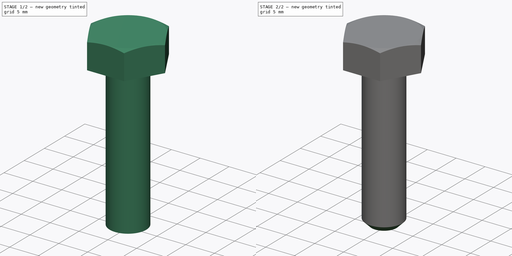
[diagram: build sequence overview — one tinted view per stage of 2, left to right]
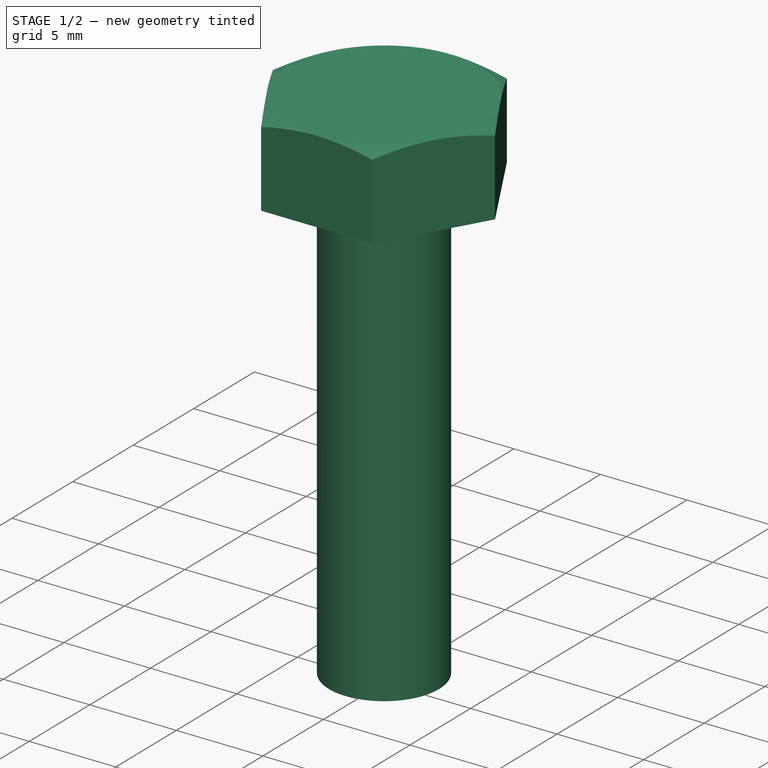
[diagram: stage 1 of 2 — iso view after this stage's code; geometry added in this stage tinted green]
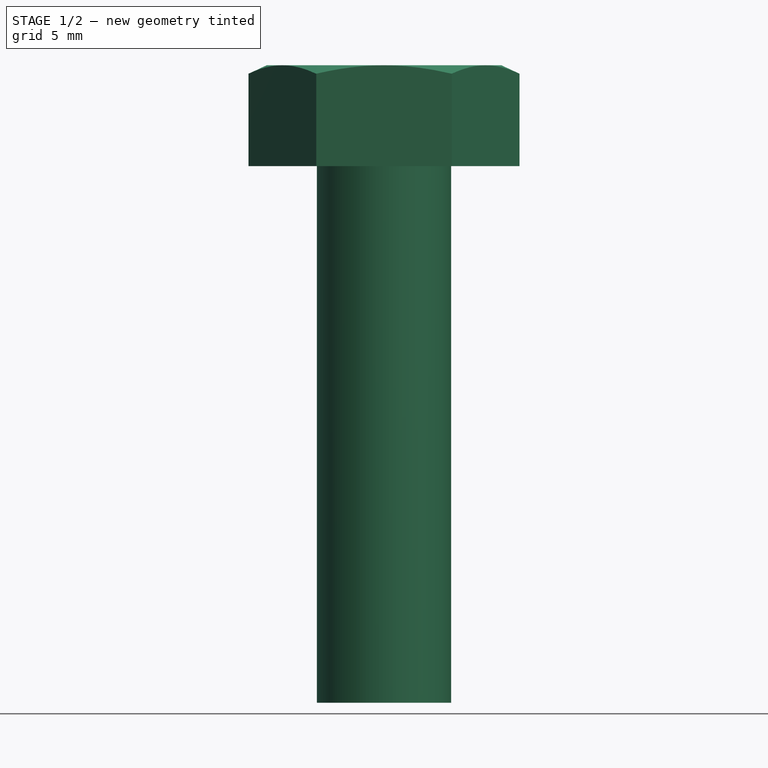
[diagram: stage 1 of 2 — front view after this stage's code; geometry added in this stage tinted green]
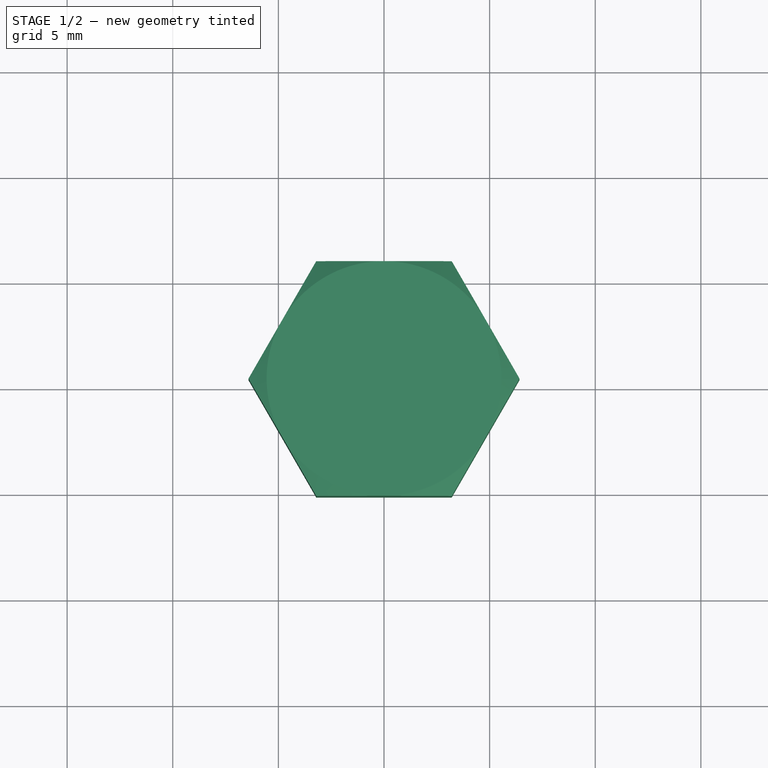
[diagram: stage 1 of 2 — top view after this stage's code; geometry added in this stage tinted green]
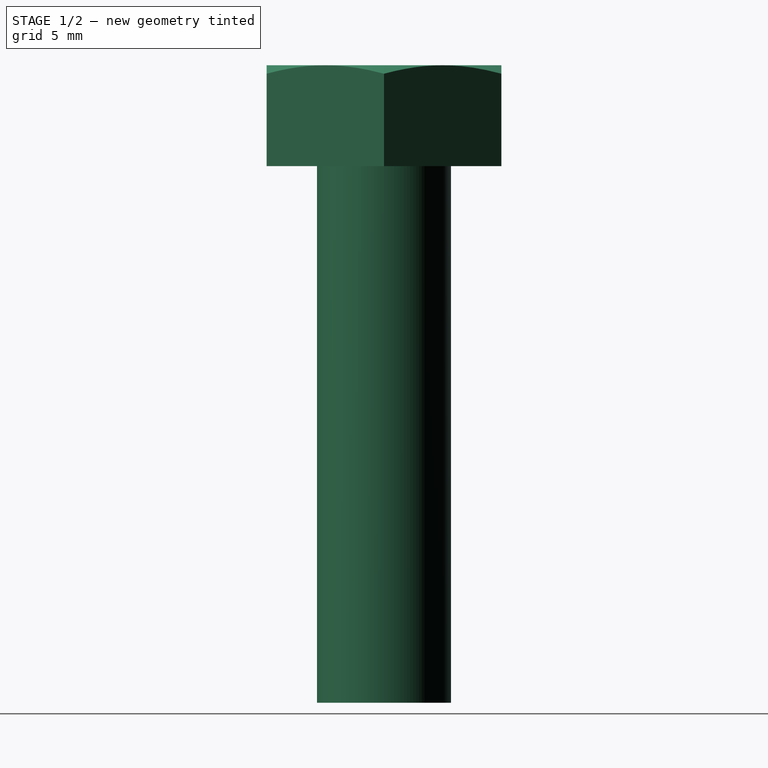
[diagram: stage 1 of 2 — right view after this stage's code; geometry added in this stage tinted green]
FCSTD DOCUMENT
Label: ANSI-ASME-B18.2.1_Hex_Head_Cap_Screw_1_4-20x1
License: CC-BY 3.0
LicenseURL: http://creativecommons.org/licenses/by/3.0/
objects: Sketcher::SketchObject×2, PartDesign::Revolution×1, PartDesign::Pocket×1, PartDesign::Chamfer×1
note: 7 computed .brp shape members not serialized (recipe doc carries the construction recipe); baked Part::Feature solids carry a one-line shape summary decoded from their .brp

FEATURE [Sketcher::SketchObject] Sketch
  Placement = pos=(0,0,0) rot=(1,0,0;1.5708rad)
  sketch-geometry (7):
    g0: LineSegment StartX=0 StartY=4.7752 StartZ=0 EndX=5.55625 EndY=4.7752 EndZ=0
    g1: LineSegment StartX=5.55625 StartY=4.7752 StartZ=0 EndX=6.4158 EndY=4.37438 EndZ=0
    g2: LineSegment StartX=6.4158 StartY=4.37438 StartZ=0 EndX=6.4158 EndY=0 EndZ=0
    g3: LineSegment StartX=6.4158 StartY=0 StartZ=0 EndX=3.175 EndY=0 EndZ=0
    g4: LineSegment StartX=3.175 StartY=0 StartZ=0 EndX=3.175 EndY=-25.4 EndZ=0
    g5: LineSegment StartX=3.175 StartY=-25.4 StartZ=0 EndX=0 EndY=-25.4 EndZ=0
    g6: LineSegment StartX=0 StartY=4.7752 StartZ=0 EndX=0 EndY=-25.4 EndZ=0
  constraints (21):
    c: PointOnObject(g0,g-2)
    c: Horizontal(g0)
    c: Coincident(g0,g1)
    c: Coincident(g1,g2)
    c: Vertical(g2)
    c: Horizontal(g3)
    c: DistanceX(g0) = 5.55625
    c: Angle(g0,g1) = 2.70526
    c: Vertical(g4)
    c: Coincident(g4,g5)
    c: PointOnObject(g5,g-2)
    c: Horizontal(g5)
    c: Coincident(g3,g4)
    c: DistanceX(g1,g0) = -6.4158
    c: Coincident(g6,g0)
    c: Coincident(g6,g5)
    c: DistanceX(g5) = -3.175
    c: PointOnObject(g3,g-1)
    c: Coincident(g3,g2)
    c: DistanceY(g2,g0) = 4.7752
    c: DistanceY(g4,g2) = 25.4
FEATURE [PartDesign::Revolution] Revolution
  Angle = 360
  Axis = (0,0,1)
  Base = (0,0,0)
  Placement = pos=(0,0,0) rot=(1,0,0;1.5708rad)
  ReferenceAxis = -> Sketch [V_Axis]
  Sketch = -> Sketch
FEATURE [Sketcher::SketchObject] Sketch001  label="Hexagon"
  Placement = pos=(0,0,4.7752) rot=(0,0,1;3.14159rad)
  Support = -> Revolution [Face1]
  sketch-geometry (9):
    g0: LineSegment StartX=-3.2079 StartY=5.55625 StartZ=0 EndX=3.2079 EndY=5.55625 EndZ=0
    g1: LineSegment StartX=3.2079 StartY=5.55625 StartZ=0 EndX=6.4158 EndY=0 EndZ=0
    g2: LineSegment StartX=6.4158 StartY=0 StartZ=0 EndX=3.2079 EndY=-5.55625 EndZ=0
    g3: LineSegment StartX=3.2079 StartY=-5.55625 StartZ=0 EndX=-3.2079 EndY=-5.55625 EndZ=0
    g4: LineSegment StartX=-3.2079 StartY=-5.55625 StartZ=0 EndX=-6.4158 EndY=0 EndZ=0
    g5: LineSegment StartX=-6.4158 StartY=0 StartZ=0 EndX=-3.2079 EndY=5.55625 EndZ=0
    g6: Circle [constr] CenterX=0 CenterY=0 CenterZ=0 NormalX=0 NormalY=0 NormalZ=1 Radius=6.4158
    g7: Circle CenterX=0 CenterY=0 CenterZ=0 NormalX=0 NormalY=0 NormalZ=1 Radius=7.4158
    g8: LineSegment [constr] StartX=0 StartY=6.4158 StartZ=0 EndX=0 EndY=7.4158 EndZ=0
  constraints (26):
    c: Horizontal(g0)
    c: Coincident(g0,g1)
    c: Coincident(g1,g2)
    c: Coincident(g2,g3)
    c: Horizontal(g3)
    c: Coincident(g3,g4)
    c: Coincident(g4,g5)
    c: Coincident(g5,g0)
    c: Equal(g5,g0)
    c: Equal(g0,g4)
    c: Equal(g4,g3)
    c: Equal(g3,g2)
    c: Equal(g2,g1)
    c: PointOnObject(g0,g6)
    c: PointOnObject(g2,g6)
    c: PointOnObject(g1,g6)
    c: PointOnObject(g4,g6)
    c: PointOnObject(g0,g6)
    c: DistanceY(g3,g0) = 11.1125
    c: Coincident(g6,g-1)
    c: Coincident(g7,g-1)
    c: PointOnObject(g8,g6)
    c: PointOnObject(g8,g7)
    c: Vertical(g8)
    c: PointOnObject(g8,g-2)
    c: DistanceY(g8) = 1
FEATURE [PartDesign::Pocket] Pocket
  Length = 5
  Placement = pos=(0,0,0) rot=(1,0,0;1.5708rad)
  Sketch = -> Sketch001
  Type = 1
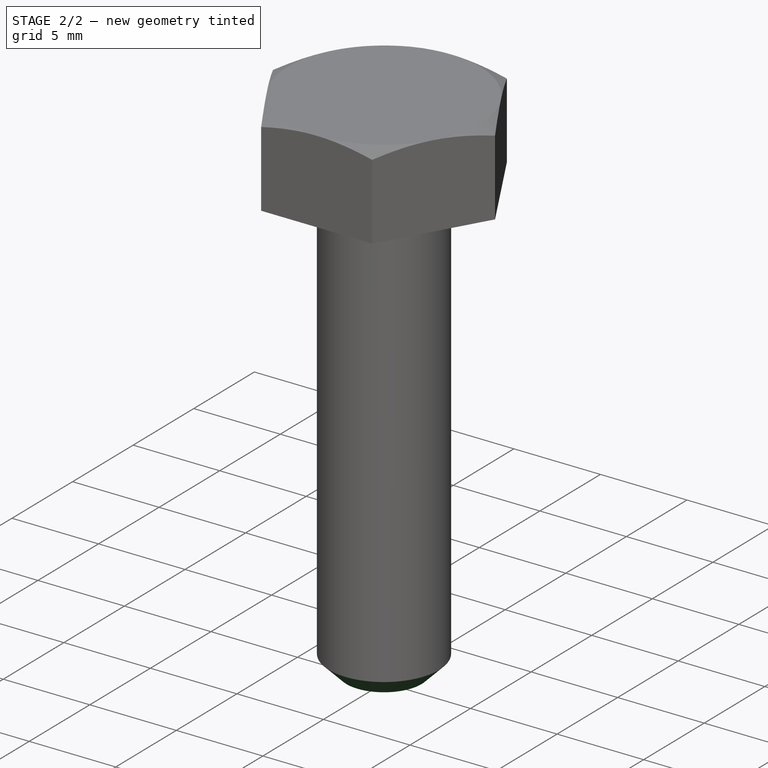
[diagram: stage 2 of 2 — iso view after this stage's code; geometry added in this stage tinted green]
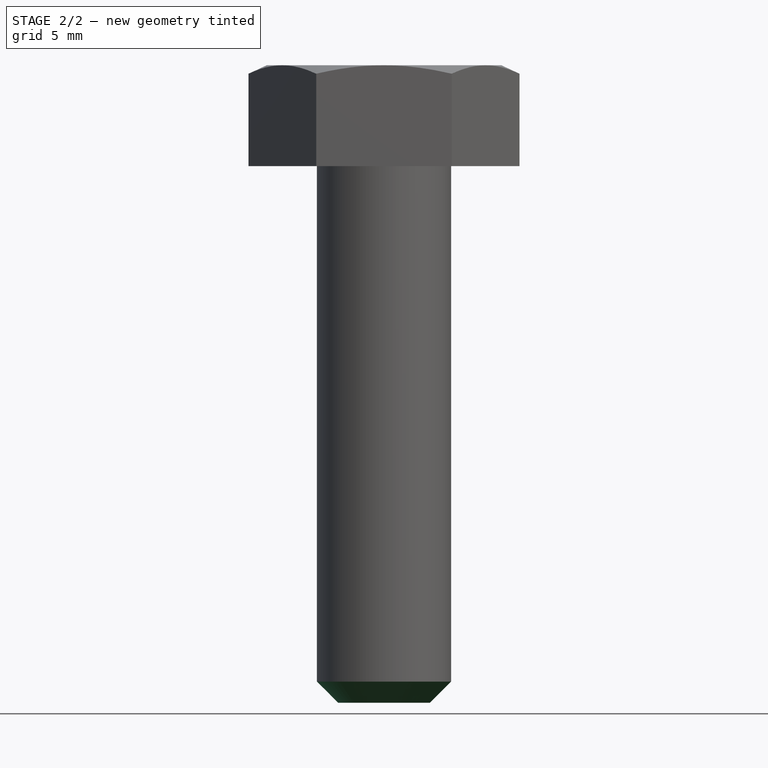
[diagram: stage 2 of 2 — front view after this stage's code; geometry added in this stage tinted green]
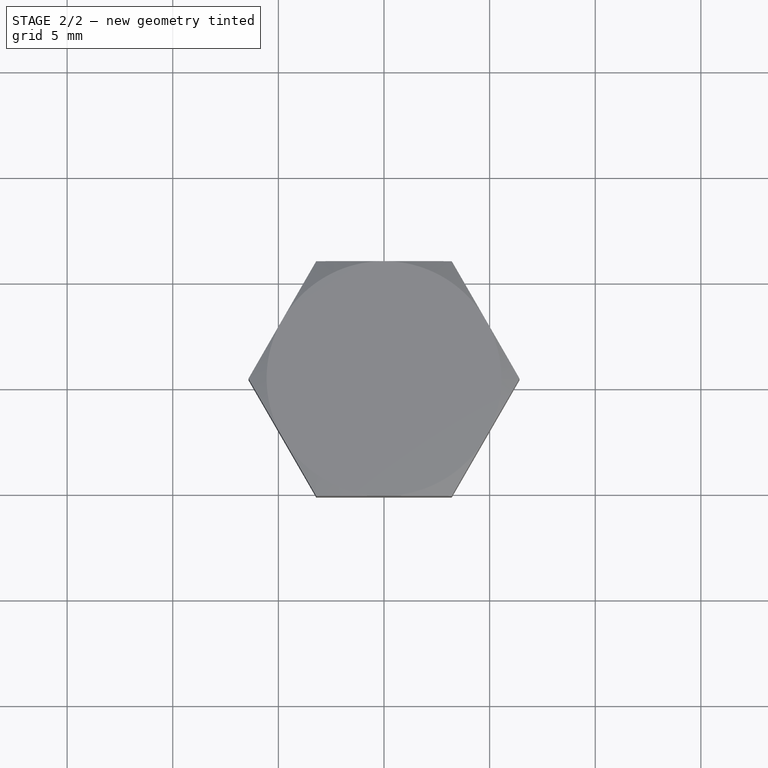
[diagram: stage 2 of 2 — top view after this stage's code; geometry added in this stage tinted green]
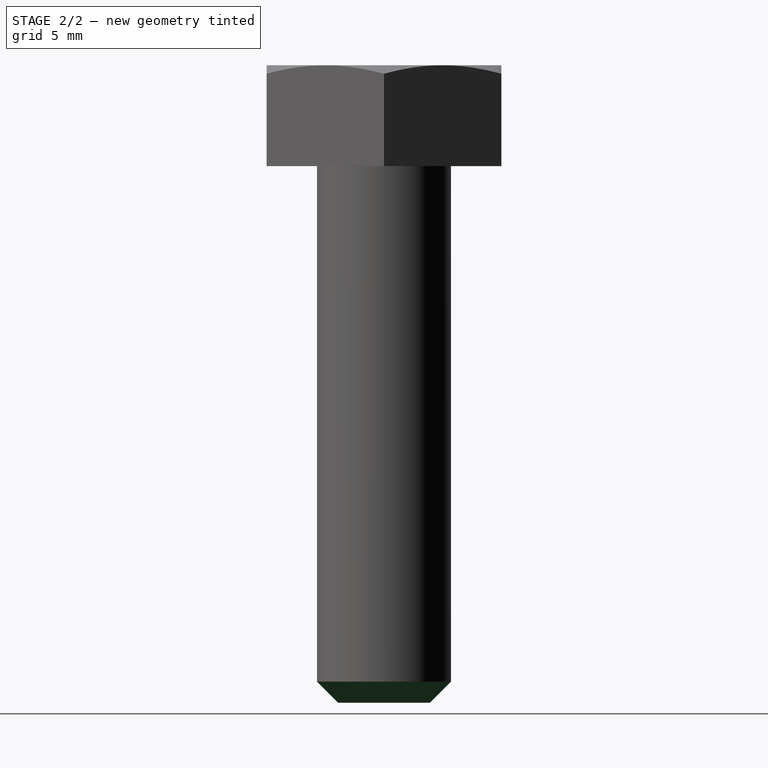
[diagram: stage 2 of 2 — right view after this stage's code; geometry added in this stage tinted green]
FEATURE [PartDesign::Chamfer] Chamfer
  Base = -> Pocket [Edge2]
  Placement = pos=(0,0,0) rot=(1,0,0;1.5708rad)
  Size = 1
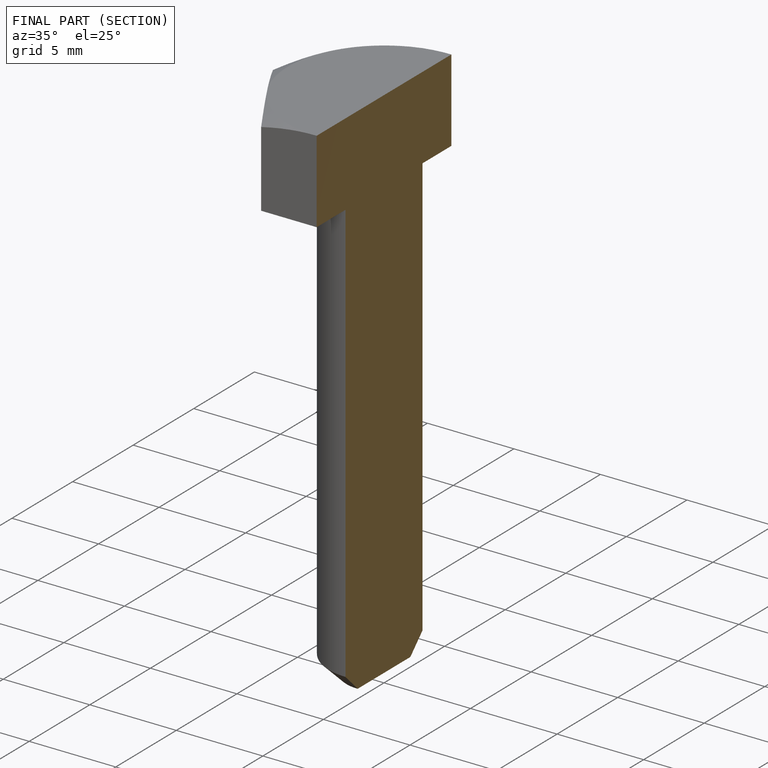
[diagram: finished part — half-section view (interior)]
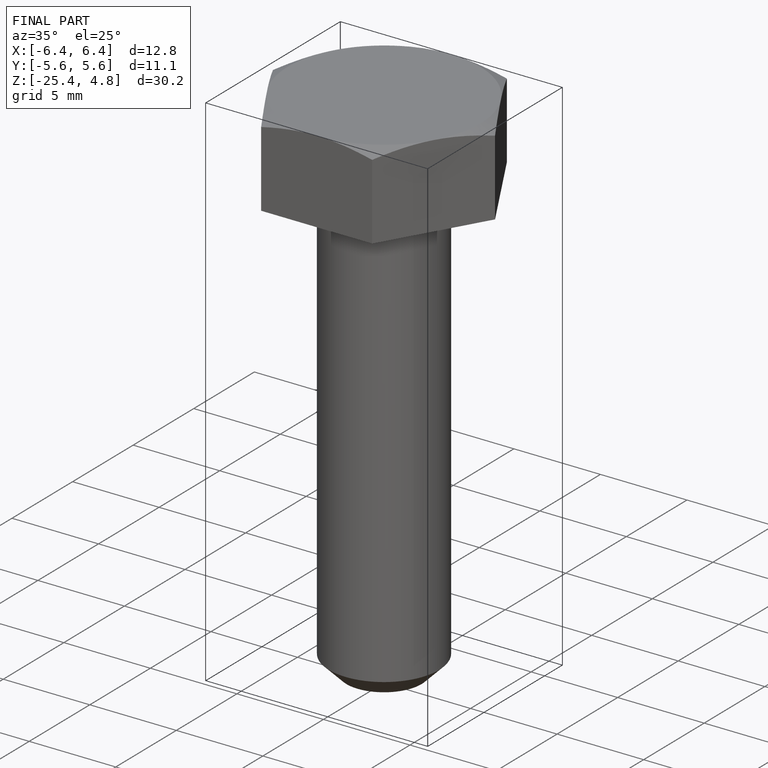
[diagram: finished part — iso view with bounding-box wireframe]
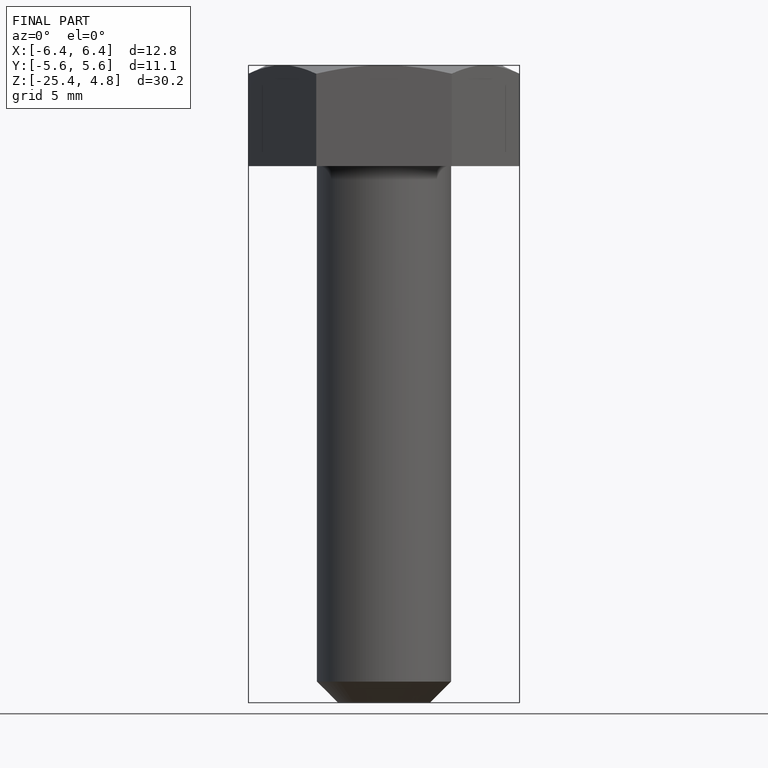
[diagram: finished part — front view with bounding-box wireframe]
